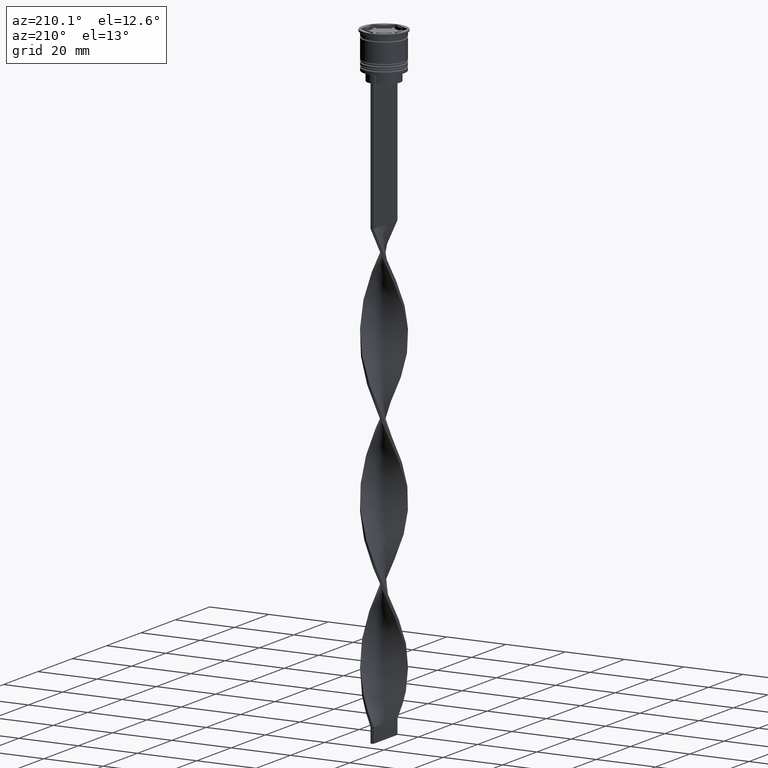
[diagram: clean part render]
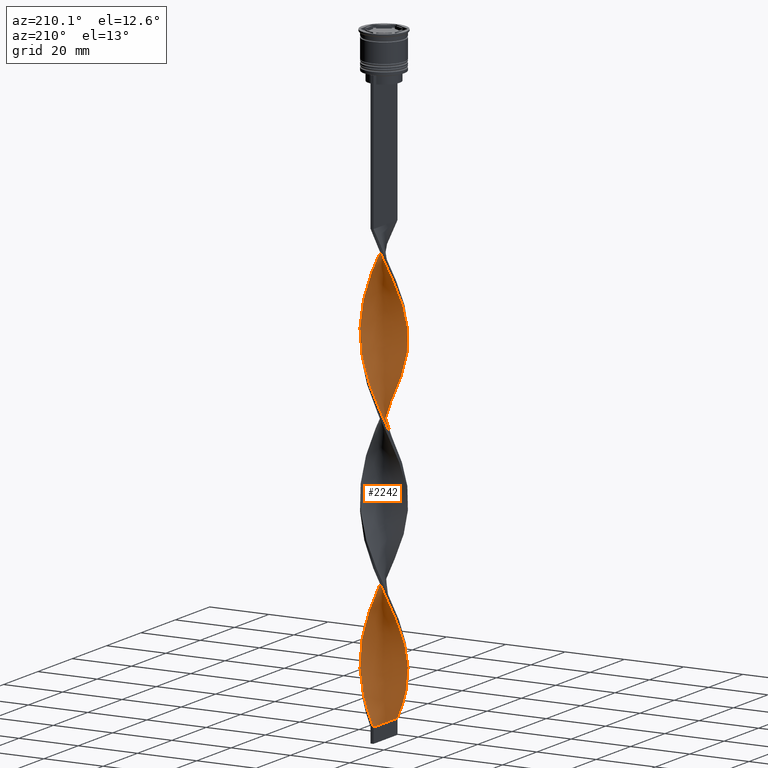
[diagram: same view with one face highlighted and labeled with its STEP entity id]
A machine part, auxiliary view. The second image highlights one B-rep face of the part: STEP entity #2242.
In plain terms, the highlighted face is a freeform B-spline surface patch.
Its self-contained STEP definition (entity closure, byte-faithful):
#3 = CARTESIAN_POINT ( 'NONE',  ( -0.4999999999999991673, 6.999999999999997335, -207.5000000000000000 ) ) ;
#4 = CARTESIAN_POINT ( 'NONE',  ( 2.994927778012247632, -6.346684772736912450, -64.34313725490196134 ) ) ;
#15 = CARTESIAN_POINT ( 'NONE',  ( -5.085373964136229219, 4.836214598721332969, -119.8529411764705799 ) ) ;
#17 = CARTESIAN_POINT ( 'NONE',  ( 1.148645523694208581, 6.953668176878989193, -156.3725490196078454 ) ) ;
#37 = CARTESIAN_POINT ( 'NONE',  ( -5.533515242862683259, 4.364985304700184088, -121.3137254901960631 ) ) ;
#39 = CARTESIAN_POINT ( 'NONE',  ( -6.736663859307489233, -2.071291312187311551, -188.5098039215686185 ) ) ;
#43 = CARTESIAN_POINT ( 'NONE',  ( 2.062455548607894595, -6.707926438924068258, -114.0098039215686185 ) ) ;
#46 = CARTESIAN_POINT ( 'NONE',  ( -6.869610997245777284, -1.434728108918171596, -87.71568627450979250 ) ) ;
#48 = CARTESIAN_POINT ( 'NONE',  ( -2.062455548607892375, -6.707926438924064705, -151.9901960784313530 ) ) ;
#59 = CARTESIAN_POINT ( 'NONE',  ( 2.684036471161912019, -6.516811787577958981, -115.4705882352940876 ) ) ;
#64 = CARTESIAN_POINT ( 'NONE',  ( -6.595948007173689120, -2.396553752090988088, -137.3823529411764639 ) ) ;
#76 = CARTESIAN_POINT ( 'NONE',  ( 4.346365046915569685, 5.509910242367890731, -195.8137254901960773 ) ) ;
#84 = CARTESIAN_POINT ( 'NONE',  ( 1.440874626053875396, -6.899041090270183751, -112.5490196078431495 ) ) ;
#89 = CARTESIAN_POINT ( 'NONE',  ( -6.373874598089923182, -3.007758344858550981, -138.8431372549019329 ) ) ;
#94 = CARTESIAN_POINT ( 'NONE',  ( -4.856933420439688120, 5.107160209221786928, -170.9803921568627629 ) ) ;
#97 = CARTESIAN_POINT ( 'NONE',  ( 3.835796673391455691, 5.912660275513999864, -197.2745098039215463 ) ) ;
#103 = VERTEX_POINT ( 'NONE', #3 ) ;
#105 = CARTESIAN_POINT ( 'NONE',  ( 0.1486455236942071378, 7.046331823121014359, -106.7058823529411882 ) ) ;
#111 = CARTESIAN_POINT ( 'NONE',  ( 6.595948007173694450, -2.396553752090992084, -128.6176470588235361 ) ) ;
#113 = CARTESIAN_POINT ( 'NONE',  ( -4.110133708006299180, -5.688303868668623586, -198.7352941176470722 ) ) ;
#115 = CARTESIAN_POINT ( 'NONE',  ( -7.016273413796890956, 0.1480114280955958372, -131.5392156862745310 ) ) ;
#116 = CARTESIAN_POINT ( 'NONE',  ( 7.029988692409719242, 0.5021420494578368032, -182.6666666666666572 ) ) ;
#122 = CARTESIAN_POINT ( 'NONE',  ( 7.002558135184063559, -0.7981649056490300875, -80.41176470588234793 ) ) ;
#130 = CARTESIAN_POINT ( 'NONE',  ( -3.583034730602821405, -6.069163844594760882, -200.1960784313725696 ) ) ;
#137 = CARTESIAN_POINT ( 'NONE',  ( -6.736663859307489233, -2.071291312187311551, -188.5098039215686185 ) ) ;
#146 = CARTESIAN_POINT ( 'NONE',  ( 5.712673125104408278, 4.127741927368044905, -191.4313725490196134 ) ) ;
#154 = CARTESIAN_POINT ( 'NONE',  ( -1.440874626053875174, 6.899041090270183751, -162.2156862745098351 ) ) ;
#156 = CARTESIAN_POINT ( 'NONE',  ( -5.887437909151307380, -3.819433841014676201, -192.8921568627450824 ) ) ;
#195 = CARTESIAN_POINT ( 'NONE',  ( -6.924005054333588483, -1.143745604390627779, -134.4607843137254974 ) ) ;
#202 = CARTESIAN_POINT ( 'NONE',  ( 5.284803272772047755, 4.617451068294911920, -93.55882352941176805 ) ) ;
#226 = CARTESIAN_POINT ( 'NONE',  ( -2.062455548607893263, 6.707926438924069146, -163.6764705882352757 ) ) ;
#229 = EDGE_CURVE ( 'NONE', #1521, #2752, #693, .T. ) ;
#230 = CARTESIAN_POINT ( 'NONE',  ( -2.062455548607893263, 6.707926438924069146, -64.34313725490196134 ) ) ;
#231 = CARTESIAN_POINT ( 'NONE',  ( 6.373874598089927623, -3.007758344858554977, -127.1568627450980102 ) ) ;
#242 = CARTESIAN_POINT ( 'NONE',  ( -1.777733174557944107, -6.788936938879031047, -204.5784313725490335 ) ) ;
#271 = CARTESIAN_POINT ( 'NONE',  ( -4.637232685409778732, -5.307443892742487179, -97.94117647058824616 ) ) ;
#275 = CARTESIAN_POINT ( 'NONE',  ( -1.148645523694207693, -6.953668176878989193, -106.7058823529412024 ) ) ;
#289 =( BOUNDED_CURVE ( )  B_SPLINE_CURVE ( 2, ( #3847, #2344, #553, #2903, #230, #1496, #894, #3539, #2691, #2009, #876, #2028, #1424, #3222, #3264, #1478, #1761, #3207, #2065, #2044, #3894, #1722, #1133, #1742, #2938, #2296, #2961, #271, #1458, #2670, #3871, #1194, #314, #614, #2226, #731, #939, #3716, #2123, #3607, #332, #955, #713, #1894, #1334, #1538, #3370, #746, #111, #2993, #465, #3733, #2734, #2534, #1931, #3080, #2835, #1023, #3692, #3114, #1067, #1642, #431, #1252, #1605, #2103, #3299, #17, #631, #2515, #2710, #154, #2816, #646, #1047, #2211, #2496, #3626, #1806, #2407, #1515, #1824, #3412, #1234, #1358, #2798, #3014, #353, #1317, #39, #2424, #2191, #3392, #1915, #3097, #449, #1625, #130, #806, #3508, #242, #520, #3451 ),
 .UNSPECIFIED., .F., .T. ) 
 B_SPLINE_CURVE_WITH_KNOTS ( ( 3, 2, 2, 2, 2, 2, 2, 2, 2, 2, 2, 2, 2, 2, 2, 2, 2, 2, 2, 2, 2, 2, 2, 2, 2, 2, 2, 2, 2, 2, 2, 2, 2, 2, 2, 2, 2, 2, 2, 2, 2, 2, 2, 2, 2, 2, 2, 2, 2, 2, 2, 3 ),
 ( 0.000000000000000000, 0.01470588235294117453, 0.02941176470588234906, 0.04411764705882353227, 0.05882352941176469813, 0.07352941176470588480, 0.08823529411764706454, 0.1029411764705882443, 0.1176470588235293963, 0.1323529411764705899, 0.1470588235294117696, 0.1617647058823529493, 0.1764705882352941291, 0.1911764705882352811, 0.2058823529411764885, 0.2205882352941176405, 0.2352941176470587925, 0.2500000000000000000, 0.2647058823529411797, 0.2794117647058823595, 0.2941176470588235392, 0.3088235294117647189, 0.3235294117647058987, 0.3382352941176470229, 0.3529411764705882582, 0.3676470588235294379, 0.3823529411764705621, 0.3970588235294117418, 0.4117647058823529771, 0.4264705882352941013, 0.4411764705882352811, 0.4558823529411764608, 0.4705882352941175850, 0.4852941176470588203, 0.5000000000000000000, 0.5147058823529411242, 0.5294117647058823595, 0.5441176470588234837, 0.5588235294117647189, 0.5735294117647058432, 0.5882352941176470784, 0.6029411764705882026, 0.6176470588235294379, 0.6323529411764705621, 0.6470588235294117974, 0.6617647058823529216, 0.6764705882352940458, 0.6911764705882351700, 0.7058823529411765163, 0.7205882352941176405, 0.7352941176470588758, 0.7500000000000000000 ),
 .UNSPECIFIED. ) 
 CURVE ( )  GEOMETRIC_REPRESENTATION_ITEM ( )  RATIONAL_B_SPLINE_CURVE ( ( 1.000000000000000000, 0.9957341762950344677, 1.000000000000000000, 0.9957341762950344677, 1.000000000000000000, 0.9957341762950344677, 1.000000000000000000, 0.9957341762950344677, 1.000000000000000000, 0.9957341762950344677, 1.000000000000000000, 0.9957341762950344677, 1.000000000000000000, 0.9957341762950344677, 1.000000000000000000, 0.9957341762950344677, 1.000000000000000000, 0.9957341762950344677, 1.000000000000000000, 0.9957341762950344677, 1.000000000000000000, 0.9957341762950344677, 1.000000000000000000, 0.9957341762950344677, 1.000000000000000000, 0.9957341762950344677, 1.000000000000000000, 0.9957341762950344677, 1.000000000000000000, 0.9957341762950344677, 1.000000000000000000, 0.9957341762950344677, 1.000000000000000000, 0.9957341762950344677, 1.000000000000000000, 0.9957341762950344677, 1.000000000000000000, 0.9957341762950344677, 1.000000000000000000, 0.9957341762950344677, 1.000000000000000000, 0.9957341762950344677, 1.000000000000000000, 0.9957341762950344677, 1.000000000000000000, 0.9957341762950344677, 1.000000000000000000, 0.9957341762950344677, 1.000000000000000000, 0.9957341762950344677, 1.000000000000000000, 0.9957341762950344677, 1.000000000000000000, 0.9957341762950344677, 1.000000000000000000, 0.9957341762950344677, 1.000000000000000000, 0.9957341762950344677, 1.000000000000000000, 0.9957341762950344677, 1.000000000000000000, 0.9957341762950344677, 1.000000000000000000, 0.9957341762950344677, 1.000000000000000000, 0.9957341762950344677, 1.000000000000000000, 0.9957341762950344677, 1.000000000000000000, 0.9957341762950344677, 1.000000000000000000, 0.9957341762950344677, 1.000000000000000000, 0.9957341762950344677, 1.000000000000000000, 0.9957341762950344677, 1.000000000000000000, 0.9957341762950344677, 1.000000000000000000, 0.9957341762950344677, 1.000000000000000000, 0.9957341762950344677, 1.000000000000000000, 0.9957341762950344677, 1.000000000000000000, 0.9957341762950344677, 1.000000000000000000, 0.9957341762950344677, 1.000000000000000000, 0.9957341762950344677, 1.000000000000000000, 0.9957341762950344677, 1.000000000000000000, 0.9957341762950344677, 1.000000000000000000, 0.9957341762950344677, 1.000000000000000000, 0.9957341762950344677, 1.000000000000000000, 0.9957341762950344677, 1.000000000000000000, 0.9957341762950344677, 1.000000000000000000 ) ) 
 REPRESENTATION_ITEM ( '' )  );
#298 = CARTESIAN_POINT ( 'NONE',  ( -5.712673125104412719, 4.127741927368047570, -173.9019607843137294 ) ) ;
#314 = CARTESIAN_POINT ( 'NONE',  ( -1.777733174557944107, -6.788936938879031047, -105.2450980392156765 ) ) ;
#323 = CARTESIAN_POINT ( 'NONE',  ( 1.777733174557942775, -6.788936938879025718, -61.42156862745097357 ) ) ;
#327 = CARTESIAN_POINT ( 'NONE',  ( 2.062455548607891487, 6.707926438924064705, -102.3235294117646959 ) ) ;
#332 = CARTESIAN_POINT ( 'NONE',  ( 3.259916572276685187, -6.214736031545978534, -116.9313725490195992 ) ) ;
#353 = CARTESIAN_POINT ( 'NONE',  ( -7.002558135184068888, -0.7981649056490316418, -185.5882352941176237 ) ) ;
#362 = CARTESIAN_POINT ( 'NONE',  ( -7.002558135184068000, -0.7981649056490316418, -86.25490196078432348 ) ) ;
#364 = CARTESIAN_POINT ( 'NONE',  ( -5.085373964136229219, 4.836214598721332969, -119.8529411764705799 ) ) ;
#372 = CARTESIAN_POINT ( 'NONE',  ( -2.406820825421680965, -6.624205700879071124, -203.1176470588235361 ) ) ;
#383 = CARTESIAN_POINT ( 'NONE',  ( -3.583034730602817408, 6.069163844594756441, -115.4705882352941018 ) ) ;
#392 = CARTESIAN_POINT ( 'NONE',  ( 5.887437909151302939, -3.819433841014673536, -172.4411764705882035 ) ) ;
#399 = CARTESIAN_POINT ( 'NONE',  ( -3.583034730602816964, 6.069163844594756441, -115.4705882352940876 ) ) ;
#400 = CARTESIAN_POINT ( 'NONE',  ( -5.533515242862685035, -4.364985304700188529, -95.01960784313725128 ) ) ;
#401 = CARTESIAN_POINT ( 'NONE',  ( 3.835796673391455247, 5.912660275513998975, -97.94117647058824616 ) ) ;
#413 = CARTESIAN_POINT ( 'NONE',  ( 4.637232685409776067, -5.307443892742482738, -168.0588235294117680 ) ) ;
#424 = CARTESIAN_POINT ( 'NONE',  ( 0.5000000000000000000, -6.999999999999997335, -157.8333333333333144 ) ) ;
#431 = CARTESIAN_POINT ( 'NONE',  ( 4.110133708006300957, 5.688303868668621810, -149.0686274509803866 ) ) ;
#443 = CARTESIAN_POINT ( 'NONE',  ( 4.346365046915569685, 5.509910242367890731, -96.48039215686274872 ) ) ;
#449 = CARTESIAN_POINT ( 'NONE',  ( -4.637232685409778732, -5.307443892742487179, -197.2745098039215463 ) ) ;
#452 = CARTESIAN_POINT ( 'NONE',  ( 5.085373964136229219, -4.836214598721332969, -169.5196078431372371 ) ) ;
#460 = CARTESIAN_POINT ( 'NONE',  ( 6.241360575439923508, -3.273882377329162985, -173.9019607843137294 ) ) ;
#465 = CARTESIAN_POINT ( 'NONE',  ( 6.924005054333593812, -1.143745604390631110, -131.5392156862745310 ) ) ;
#467 = CARTESIAN_POINT ( 'NONE',  ( 1.777733174557942775, -6.788936938879025718, -160.7549019607842808 ) ) ;
#503 = CARTESIAN_POINT ( 'NONE',  ( -5.712673125104412719, 4.127741927368047570, -74.56862745098038658 ) ) ;
#514 = CARTESIAN_POINT ( 'NONE',  ( 2.994927778012247632, -6.346684772736912450, -163.6764705882352757 ) ) ;
#520 = CARTESIAN_POINT ( 'NONE',  ( -1.148645523694207693, -6.953668176878989193, -206.0392156862745026 ) ) ;
#536 = CARTESIAN_POINT ( 'NONE',  ( 6.924005054333588483, 1.143745604390630222, -184.1274509803921546 ) ) ;
#553 = CARTESIAN_POINT ( 'NONE',  ( -0.7947600748740419885, 6.972686456695599944, -61.42156862745097357 ) ) ;
#590 = CARTESIAN_POINT ( 'NONE',  ( -0.5000000000000008882, -7.000000000000002665, -108.1666666666666572 ) ) ;
#605 = CARTESIAN_POINT ( 'NONE',  ( 5.712673125104408278, 4.127741927368045793, -92.09803921568628482 ) ) ;
#614 = CARTESIAN_POINT ( 'NONE',  ( -1.148645523694207693, -6.953668176878989193, -106.7058823529411882 ) ) ;
#622 = CARTESIAN_POINT ( 'NONE',  ( -6.595948007173694450, 2.396553752090989864, -78.95098039215686470 ) ) ;
#631 = CARTESIAN_POINT ( 'NONE',  ( 0.5000000000000000000, 7.000000000000002665, -157.8333333333333144 ) ) ;
#646 = CARTESIAN_POINT ( 'NONE',  ( -2.684036471161912907, 6.516811787577958981, -165.1372549019608016 ) ) ;
#648 = CARTESIAN_POINT ( 'NONE',  ( -6.373874598089927623, 3.007758344858555866, -176.8235294117647243 ) ) ;
#656 = CARTESIAN_POINT ( 'NONE',  ( 1.440874626053875174, 6.899041090270179311, -103.7843137254901791 ) ) ;
#676 = CARTESIAN_POINT ( 'NONE',  ( 3.259916572276681634, 6.214736031545974981, -99.40196078431372939 ) ) ;
#685 = CARTESIAN_POINT ( 'NONE',  ( 0.7947600748740411003, 6.972686456695594615, -204.5784313725490335 ) ) ;
#693 = LINE ( 'NONE', #1868, #2378 ) ;
#694 = CARTESIAN_POINT ( 'NONE',  ( 2.062455548607891487, 6.707926438924064705, -102.3235294117646959 ) ) ;
#703 = CARTESIAN_POINT ( 'NONE',  ( 5.533515242862682371, -4.364985304700184976, -170.9803921568627629 ) ) ;
#708 = CARTESIAN_POINT ( 'NONE',  ( -4.856933420439682791, -5.107160209221785152, -144.6862745098039227 ) ) ;
#713 = CARTESIAN_POINT ( 'NONE',  ( 4.346365046915572350, -5.509910242367894284, -119.8529411764705799 ) ) ;
#717 = CARTESIAN_POINT ( 'NONE',  ( -0.4999999999999991673, 6.999999999999997335, -207.5000000000000000 ) ) ;
#727 = CARTESIAN_POINT ( 'NONE',  ( 5.533515242862682371, -4.364985304700184976, -71.64705882352942012 ) ) ;
#731 = CARTESIAN_POINT ( 'NONE',  ( 0.1486455236942091918, -7.046331823121017912, -109.6274509803921404 ) ) ;
#734 = CARTESIAN_POINT ( 'NONE',  ( -3.259916572276685187, -6.214736031545972317, -149.0686274509803866 ) ) ;
#740 = ORIENTED_EDGE ( 'NONE', *, *, #2982, .T. ) ;
#746 = CARTESIAN_POINT ( 'NONE',  ( 6.373874598089927623, -3.007758344858554977, -127.1568627450980244 ) ) ;
#751 = CARTESIAN_POINT ( 'NONE',  ( 3.259916572276685187, -6.214736031545978534, -116.9313725490195992 ) ) ;
#757 = CARTESIAN_POINT ( 'NONE',  ( -0.4999999999999991673, 6.999999999999997335, -207.5000000000000000 ) ) ;
#766 = CARTESIAN_POINT ( 'NONE',  ( -5.533515242862685035, -4.364985304700188529, -194.3529411764705799 ) ) ;
#767 = FACE_OUTER_BOUND ( 'NONE', #2468, .T. ) ;
#772 = CARTESIAN_POINT ( 'NONE',  ( -2.994927778012249409, -6.346684772736916891, -201.6568627450980387 ) ) ;
#780 = CARTESIAN_POINT ( 'NONE',  ( 4.856933420439684568, 5.107160209221783376, -194.3529411764705799 ) ) ;
#793 = CARTESIAN_POINT ( 'NONE',  ( -6.489012217373707259, -2.672586844758237490, -189.9705882352941160 ) ) ;
#800 = CARTESIAN_POINT ( 'NONE',  ( 6.736663859307483904, -2.071291312187310663, -176.8235294117647243 ) ) ;
#806 = CARTESIAN_POINT ( 'NONE',  ( -2.994927778012249409, -6.346684772736916891, -201.6568627450980387 ) ) ;
#827 = CARTESIAN_POINT ( 'NONE',  ( -0.7947600748740419885, 6.972686456695599944, -61.42156862745097357 ) ) ;
#847 = CARTESIAN_POINT ( 'NONE',  ( -7.029988692409723683, 0.5021420494578376914, -83.33333333333332860 ) ) ;
#869 = CARTESIAN_POINT ( 'NONE',  ( -6.869610997245777284, -1.434728108918171596, -187.0490196078431211 ) ) ;
#876 = CARTESIAN_POINT ( 'NONE',  ( -5.284803272772050420, 4.617451068294916361, -73.10784313725488914 ) ) ;
#877 = CARTESIAN_POINT ( 'NONE',  ( 6.736663859307490121, 2.071291312187309774, -138.8431372549019045 ) ) ;
#879 = CARTESIAN_POINT ( 'NONE',  ( 7.029988692409719242, 0.5021420494578368032, -83.33333333333332860 ) ) ;
#883 = CARTESIAN_POINT ( 'NONE',  ( -7.016273413796896286, -0.1480114280955961703, -84.79411764705882604 ) ) ;
#894 = CARTESIAN_POINT ( 'NONE',  ( -3.259916572276684299, 6.214736031545979422, -67.26470588235292780 ) ) ;
#896 = CARTESIAN_POINT ( 'NONE',  ( -6.818021416257463940, 1.785349159323425861, -179.7450980392157192 ) ) ;
#920 = CARTESIAN_POINT ( 'NONE',  ( 6.869610997245771955, -1.434728108918169154, -78.95098039215686470 ) ) ;
#929 = CARTESIAN_POINT ( 'NONE',  ( 3.583034730602818296, -6.069163844594756441, -65.80392156862745878 ) ) ;
#935 = CARTESIAN_POINT ( 'NONE',  ( -1.148645523694207693, -6.953668176878989193, -206.0392156862745026 ) ) ;
#939 = CARTESIAN_POINT ( 'NONE',  ( 0.7947600748740405452, -6.972686456695599944, -111.0882352941176379 ) ) ;
#955 = CARTESIAN_POINT ( 'NONE',  ( 3.835796673391457023, -5.912660275514004304, -118.3921568627451109 ) ) ;
#965 = CARTESIAN_POINT ( 'NONE',  ( 6.869610997245771955, -1.434728108918169154, -78.95098039215686470 ) ) ;
#977 = CARTESIAN_POINT ( 'NONE',  ( 2.994927778012250297, 6.346684772736916891, -151.9901960784313530 ) ) ;
#985 = CARTESIAN_POINT ( 'NONE',  ( -6.818021416257458611, -1.785349159323426305, -135.9215686274509665 ) ) ;
#993 = CARTESIAN_POINT ( 'NONE',  ( 5.284803272772047755, 4.617451068294911920, -192.8921568627450824 ) ) ;
#999 = CARTESIAN_POINT ( 'NONE',  ( -2.994927778012248520, 6.346684772736911562, -114.0098039215686185 ) ) ;
#1003 = CARTESIAN_POINT ( 'NONE',  ( -4.346365046915572350, 5.509910242367894284, -169.5196078431372371 ) ) ;
#1007 = CARTESIAN_POINT ( 'NONE',  ( -3.835796673391456579, -5.912660275513998975, -147.6078431372548891 ) ) ;
#1012 = CARTESIAN_POINT ( 'NONE',  ( 5.712673125104411831, -4.127741927368048458, -124.2352941176470580 ) ) ;
#1016 = CARTESIAN_POINT ( 'NONE',  ( 6.489012217373702818, -2.672586844758235713, -76.02941176470586981 ) ) ;
#1023 = CARTESIAN_POINT ( 'NONE',  ( 6.241360575439927949, 3.273882377329165205, -141.7647058823529562 ) ) ;
#1029 = CARTESIAN_POINT ( 'NONE',  ( -2.062455548607892375, -6.707926438924064705, -151.9901960784313530 ) ) ;
#1031 = B_SPLINE_CURVE_WITH_KNOTS ( 'NONE', 3,
 ( #1996, #2909, #2370, #2595 ),
 .UNSPECIFIED., .F., .F.,
 ( 4, 4 ),
 ( 0.000000000000000000, 1.000000000000000000 ),
 .UNSPECIFIED. ) ;
#1040 = CARTESIAN_POINT ( 'NONE',  ( 6.924005054333588483, 1.143745604390630222, -84.79411764705882604 ) ) ;
#1047 = CARTESIAN_POINT ( 'NONE',  ( -3.259916572276684299, 6.214736031545979422, -166.5980392156862706 ) ) ;
#1056 = CARTESIAN_POINT ( 'NONE',  ( 5.284803272772050420, -4.617451068294917249, -122.7745098039215605 ) ) ;
#1061 = CARTESIAN_POINT ( 'NONE',  ( 2.062455548607891487, 6.707926438924064705, -201.6568627450980387 ) ) ;
#1067 = CARTESIAN_POINT ( 'NONE',  ( 5.085373964136231884, 4.836214598721338298, -146.1470588235294201 ) ) ;
#1085 = CARTESIAN_POINT ( 'NONE',  ( 0.5000000000000000000, 7.000000000000002665, -58.50000000000000000 ) ) ;
#1097 = CARTESIAN_POINT ( 'NONE',  ( 6.869610997245771955, -1.434728108918169154, -178.2843137254901933 ) ) ;
#1129 = CARTESIAN_POINT ( 'NONE',  ( -3.259916572276684299, 6.214736031545979422, -166.5980392156862706 ) ) ;
#1133 = CARTESIAN_POINT ( 'NONE',  ( -6.489012217373707259, -2.672586844758237490, -90.63725490196078738 ) ) ;
#1144 = CARTESIAN_POINT ( 'NONE',  ( -3.835796673391458800, 5.912660275514003416, -68.72549019607842524 ) ) ;
#1154 = CARTESIAN_POINT ( 'NONE',  ( 2.994927778012247632, -6.346684772736912450, -64.34313725490196134 ) ) ;
#1162 = CARTESIAN_POINT ( 'NONE',  ( -6.241360575439921732, 3.273882377329163873, -124.2352941176470580 ) ) ;
#1175 = CARTESIAN_POINT ( 'NONE',  ( 7.002558135184068000, 0.7981649056490325300, -135.9215686274509665 ) ) ;
#1194 = CARTESIAN_POINT ( 'NONE',  ( -2.406820825421680521, -6.624205700879072012, -103.7843137254901791 ) ) ;
#1211 = CARTESIAN_POINT ( 'NONE',  ( 5.533515242862684147, 4.364985304700190305, -144.6862745098039227 ) ) ;
#1230 = CARTESIAN_POINT ( 'NONE',  ( -1.777733174557944107, -6.788936938879031047, -204.5784313725490335 ) ) ;
#1234 = CARTESIAN_POINT ( 'NONE',  ( -6.818021416257463940, 1.785349159323425861, -179.7450980392157476 ) ) ;
#1252 = CARTESIAN_POINT ( 'NONE',  ( 3.583034730602819629, 6.069163844594762658, -150.5294117647058840 ) ) ;
#1257 = CARTESIAN_POINT ( 'NONE',  ( -6.736663859307489233, -2.071291312187311551, -89.17647058823527573 ) ) ;
#1259 = CARTESIAN_POINT ( 'NONE',  ( -1.440874626053876062, -6.899041090270178422, -153.4509803921568789 ) ) ;
#1264 = CARTESIAN_POINT ( 'NONE',  ( 0.5000000000000000000, -6.999999999999997335, -58.50000000000000000 ) ) ;
#1277 = CARTESIAN_POINT ( 'NONE',  ( 7.016273413796890068, -0.1480114280955966977, -81.87254901960783116 ) ) ;
#1286 = CARTESIAN_POINT ( 'NONE',  ( -0.7947600748740389909, -6.972686456695594615, -154.9117647058823479 ) ) ;
#1296 = CARTESIAN_POINT ( 'NONE',  ( -6.489012217373707259, -2.672586844758237490, -90.63725490196078738 ) ) ;
#1297 = CARTESIAN_POINT ( 'NONE',  ( -5.284803272772048643, -4.617451068294911032, -143.2254901960784537 ) ) ;
#1305 = CARTESIAN_POINT ( 'NONE',  ( 6.595948007173689120, 2.396553752090988976, -187.0490196078431211 ) ) ;
#1311 = CARTESIAN_POINT ( 'NONE',  ( 5.284803272772047755, 4.617451068294911920, -93.55882352941176805 ) ) ;
#1317 = CARTESIAN_POINT ( 'NONE',  ( -6.869610997245777284, -1.434728108918171596, -187.0490196078431211 ) ) ;
#1320 = CARTESIAN_POINT ( 'NONE',  ( 2.062455548607891487, 6.707926438924064705, -201.6568627450980387 ) ) ;
#1327 = CARTESIAN_POINT ( 'NONE',  ( 6.373874598089922294, 3.007758344858553201, -89.17647058823528994 ) ) ;
#1330 = CARTESIAN_POINT ( 'NONE',  ( -6.595948007173689120, -2.396553752090988088, -137.3823529411764639 ) ) ;
#1334 = CARTESIAN_POINT ( 'NONE',  ( 5.284803272772050420, -4.617451068294917249, -122.7745098039215605 ) ) ;
#1341 = CARTESIAN_POINT ( 'NONE',  ( 2.994927778012247632, -6.346684772736912450, -163.6764705882352757 ) ) ;
#1352 = CARTESIAN_POINT ( 'NONE',  ( 3.259916572276681634, 6.214736031545974981, -198.7352941176470722 ) ) ;
#1358 = CARTESIAN_POINT ( 'NONE',  ( -6.924005054333592923, 1.143745604390631554, -181.2058823529411598 ) ) ;
#1374 = EDGE_CURVE ( 'NONE', #3354, #103, #1031, .T. ) ;
#1391 = CARTESIAN_POINT ( 'NONE',  ( -6.043273861597169727, 3.567750136113300385, -76.02941176470586981 ) ) ;
#1401 = CARTESIAN_POINT ( 'NONE',  ( 6.595948007173694450, -2.396553752090992084, -128.6176470588235361 ) ) ;
#1404 = CARTESIAN_POINT ( 'NONE',  ( 7.016273413796890068, -0.1480114280955966977, -181.2058823529411598 ) ) ;
#1419 = CARTESIAN_POINT ( 'NONE',  ( 4.856933420439689009, -5.107160209221786040, -121.3137254901960631 ) ) ;
#1424 = CARTESIAN_POINT ( 'NONE',  ( -6.043273861597169727, 3.567750136113300385, -76.02941176470586981 ) ) ;
#1425 = CARTESIAN_POINT ( 'NONE',  ( 6.924005054333593812, -1.143745604390631110, -131.5392156862745310 ) ) ;
#1458 = CARTESIAN_POINT ( 'NONE',  ( -4.110133708006299180, -5.688303868668623586, -99.40196078431372939 ) ) ;
#1464 = CARTESIAN_POINT ( 'NONE',  ( -6.373874598089923182, -3.007758344858550981, -138.8431372549019045 ) ) ;
#1478 = CARTESIAN_POINT ( 'NONE',  ( -6.818021416257463940, 1.785349159323425861, -80.41176470588234793 ) ) ;
#1479 = CARTESIAN_POINT ( 'NONE',  ( 5.887437909151308268, 3.819433841014675313, -143.2254901960784537 ) ) ;
#1485 = CARTESIAN_POINT ( 'NONE',  ( 0.5000000000000000000, -6.999999999999997335, -58.50000000000000000 ) ) ;
#1496 = CARTESIAN_POINT ( 'NONE',  ( -2.684036471161912907, 6.516811787577958981, -65.80392156862745878 ) ) ;
#1501 = CARTESIAN_POINT ( 'NONE',  ( -7.029988692409719242, -0.5021420494578359150, -133.0000000000000000 ) ) ;
#1508 = CARTESIAN_POINT ( 'NONE',  ( 2.406820825421677412, -6.624205700879067571, -62.88235294117647101 ) ) ;
#1515 = CARTESIAN_POINT ( 'NONE',  ( -6.043273861597169727, 3.567750136113300385, -175.3627450980391984 ) ) ;
#1521 = VERTEX_POINT ( 'NONE', #1485 ) ;
#1538 = CARTESIAN_POINT ( 'NONE',  ( 5.712673125104411831, -4.127741927368048458, -124.2352941176470580 ) ) ;
#1541 = CARTESIAN_POINT ( 'NONE',  ( -2.994927778012248520, 6.346684772736911562, -114.0098039215686185 ) ) ;
#1543 = ORIENTED_EDGE ( 'NONE', *, *, #1374, .F. ) ;
#1546 = CARTESIAN_POINT ( 'NONE',  ( -6.489012217373703706, 2.672586844758233937, -125.6960784313725412 ) ) ;
#1554 = CARTESIAN_POINT ( 'NONE',  ( -1.777733174557940998, 6.788936938879025718, -111.0882352941176379 ) ) ;
#1561 = CARTESIAN_POINT ( 'NONE',  ( -2.684036471161909354, -6.516811787577954540, -150.5294117647058840 ) ) ;
#1571 = CARTESIAN_POINT ( 'NONE',  ( 7.002558135184062671, -0.7981649056490300875, -179.7450980392157192 ) ) ;
#1580 = CARTESIAN_POINT ( 'NONE',  ( -4.110133708006297404, 5.688303868668618257, -116.9313725490195992 ) ) ;
#1591 = CARTESIAN_POINT ( 'NONE',  ( 6.924005054333588483, 1.143745604390630222, -184.1274509803921546 ) ) ;
#1600 = CARTESIAN_POINT ( 'NONE',  ( 1.148645523694208137, -6.953668176878982088, -159.2941176470588118 ) ) ;
#1604 = CARTESIAN_POINT ( 'NONE',  ( 0.5000000000000000000, 7.000000000000002665, -58.50000000000000000 ) ) ;
#1605 = CARTESIAN_POINT ( 'NONE',  ( 2.994927778012250297, 6.346684772736916891, -151.9901960784313530 ) ) ;
#1612 = CARTESIAN_POINT ( 'NONE',  ( -0.5000000000000008882, -7.000000000000002665, -207.5000000000000000 ) ) ;
#1615 = CARTESIAN_POINT ( 'NONE',  ( -4.637232685409775179, 5.307443892742484515, -118.3921568627451109 ) ) ;
#1617 = CARTESIAN_POINT ( 'NONE',  ( -6.924005054333588483, -1.143745604390627779, -134.4607843137254974 ) ) ;
#1625 = CARTESIAN_POINT ( 'NONE',  ( -4.110133708006299180, -5.688303868668623586, -198.7352941176470722 ) ) ;
#1635 = CARTESIAN_POINT ( 'NONE',  ( 6.818021416257458611, 1.785349159323425638, -185.5882352941176237 ) ) ;
#1642 = CARTESIAN_POINT ( 'NONE',  ( 4.637232685409779620, 5.307443892742486291, -147.6078431372548891 ) ) ;
#1646 = CARTESIAN_POINT ( 'NONE',  ( -5.887437909151302051, 3.819433841014674424, -122.7745098039215605 ) ) ;
#1647 = CARTESIAN_POINT ( 'NONE',  ( 0.5000000000000000000, -6.999999999999997335, -157.8333333333333144 ) ) ;
#1707 = CARTESIAN_POINT ( 'NONE',  ( 6.595948007173689120, 2.396553752090988976, -187.0490196078431211 ) ) ;
#1722 = CARTESIAN_POINT ( 'NONE',  ( -6.736663859307489233, -2.071291312187311551, -89.17647058823528994 ) ) ;
#1724 = CARTESIAN_POINT ( 'NONE',  ( 4.110133708006296516, -5.688303868668619145, -67.26470588235292780 ) ) ;
#1742 = CARTESIAN_POINT ( 'NONE',  ( -6.241360575439927949, -3.273882377329165649, -92.09803921568628482 ) ) ;
#1744 = CARTESIAN_POINT ( 'NONE',  ( 5.533515242862682371, -4.364985304700184976, -71.64705882352943433 ) ) ;
#1761 = CARTESIAN_POINT ( 'NONE',  ( -6.924005054333592923, 1.143745604390631554, -81.87254901960783116 ) ) ;
#1763 = CARTESIAN_POINT ( 'NONE',  ( 6.924005054333588483, 1.143745604390630222, -84.79411764705882604 ) ) ;
#1793 = CARTESIAN_POINT ( 'NONE',  ( -6.924005054333592923, 1.143745604390631554, -81.87254901960783116 ) ) ;
#1800 = CARTESIAN_POINT ( 'NONE',  ( 3.259916572276681634, 6.214736031545974981, -99.40196078431372939 ) ) ;
#1801 = CARTESIAN_POINT ( 'NONE',  ( -1.440874626053875396, 6.899041090270183751, -162.2156862745098351 ) ) ;
#1806 = CARTESIAN_POINT ( 'NONE',  ( -5.284803272772050420, 4.617451068294916361, -172.4411764705882035 ) ) ;
#1808 = CARTESIAN_POINT ( 'NONE',  ( 5.887437909151302939, -3.819433841014673536, -73.10784313725488914 ) ) ;
#1824 = CARTESIAN_POINT ( 'NONE',  ( -6.373874598089927623, 3.007758344858555866, -176.8235294117647243 ) ) ;
#1834 = CARTESIAN_POINT ( 'NONE',  ( -5.712673125104408278, -4.127741927368044017, -141.7647058823529562 ) ) ;
#1849 = CARTESIAN_POINT ( 'NONE',  ( -5.887437909151302051, 3.819433841014674424, -122.7745098039215605 ) ) ;
#1859 = CARTESIAN_POINT ( 'NONE',  ( 1.148645523694208137, -6.953668176878982088, -159.2941176470588118 ) ) ;
#1864 = CARTESIAN_POINT ( 'NONE',  ( 0.1486455236942091918, -7.046331823121017912, -109.6274509803921546 ) ) ;
#1868 = CARTESIAN_POINT ( 'NONE',  ( 0.5000000000000000000, -6.999999999999997335, -58.50000000000000000 ) ) ;
#1869 = CARTESIAN_POINT ( 'NONE',  ( 5.887437909151302939, -3.819433841014673536, -73.10784313725488914 ) ) ;
#1877 = CARTESIAN_POINT ( 'NONE',  ( -5.284803272772048643, -4.617451068294911032, -143.2254901960784537 ) ) ;
#1888 = CARTESIAN_POINT ( 'NONE',  ( -1.777733174557940998, 6.788936938879025718, -111.0882352941176379 ) ) ;
#1894 = CARTESIAN_POINT ( 'NONE',  ( 4.856933420439689009, -5.107160209221786040, -121.3137254901960773 ) ) ;
#1909 = CARTESIAN_POINT ( 'NONE',  ( -6.869610997245771955, 1.434728108918171596, -128.6176470588235361 ) ) ;
#1915 = CARTESIAN_POINT ( 'NONE',  ( -5.533515242862685923, -4.364985304700188529, -194.3529411764705799 ) ) ;
#1918 = CARTESIAN_POINT ( 'NONE',  ( -1.440874626053876062, -6.899041090270178422, -153.4509803921568789 ) ) ;
#1922 = CARTESIAN_POINT ( 'NONE',  ( 7.016273413796896286, 0.1480114280955937833, -134.4607843137254974 ) ) ;
#1931 = CARTESIAN_POINT ( 'NONE',  ( 6.869610997245777284, 1.434728108918170708, -137.3823529411764639 ) ) ;
#1933 = CARTESIAN_POINT ( 'NONE',  ( 6.818021416257458611, 1.785349159323425638, -185.5882352941176237 ) ) ;
#1942 = CARTESIAN_POINT ( 'NONE',  ( 2.406820825421677412, -6.624205700879067571, -162.2156862745098351 ) ) ;
#1960 = ORIENTED_EDGE ( 'NONE', *, *, #229, .F. ) ;
#1965 = CARTESIAN_POINT ( 'NONE',  ( -2.684036471161912907, 6.516811787577958981, -65.80392156862747299 ) ) ;
#1970 = CARTESIAN_POINT ( 'NONE',  ( -6.241360575439927061, -3.273882377329165649, -191.4313725490196134 ) ) ;
#1978 = CARTESIAN_POINT ( 'NONE',  ( 0.1486455236942071378, 7.046331823121014359, -206.0392156862745026 ) ) ;
#1984 = CARTESIAN_POINT ( 'NONE',  ( -4.637232685409779620, -5.307443892742487179, -197.2745098039215463 ) ) ;
#1996 = CARTESIAN_POINT ( 'NONE',  ( -0.5000000000000008882, -7.000000000000002665, -207.5000000000000000 ) ) ;
#2002 = CARTESIAN_POINT ( 'NONE',  ( -1.440874626053875396, 6.899041090270183751, -62.88235294117647811 ) ) ;
#2009 = CARTESIAN_POINT ( 'NONE',  ( -4.856933420439688120, 5.107160209221786928, -71.64705882352942012 ) ) ;
#2028 = CARTESIAN_POINT ( 'NONE',  ( -5.712673125104412719, 4.127741927368047570, -74.56862745098038658 ) ) ;
#2044 = CARTESIAN_POINT ( 'NONE',  ( -7.002558135184068888, -0.7981649056490316418, -86.25490196078432348 ) ) ;
#2045 = CARTESIAN_POINT ( 'NONE',  ( 6.241360575439927061, 3.273882377329165205, -141.7647058823529562 ) ) ;
#2065 = CARTESIAN_POINT ( 'NONE',  ( -7.016273413796896286, -0.1480114280955961703, -84.79411764705882604 ) ) ;
#2076 = CARTESIAN_POINT ( 'NONE',  ( 1.148645523694208137, -6.953668176878982088, -59.96078431372549034 ) ) ;
#2083 = CARTESIAN_POINT ( 'NONE',  ( 0.5000000000000000000, 7.000000000000002665, -157.8333333333333144 ) ) ;
#2103 = CARTESIAN_POINT ( 'NONE',  ( 2.406820825421680965, 6.624205700879071124, -153.4509803921568789 ) ) ;
#2107 = CARTESIAN_POINT ( 'NONE',  ( 0.7947600748740405452, -6.972686456695599944, -111.0882352941176379 ) ) ;
#2122 = CARTESIAN_POINT ( 'NONE',  ( -1.148645523694208581, 6.953668176878982088, -109.6274509803921546 ) ) ;
#2123 = CARTESIAN_POINT ( 'NONE',  ( 2.062455548607894595, -6.707926438924068258, -114.0098039215686185 ) ) ;
#2132 = CARTESIAN_POINT ( 'NONE',  ( -4.110133708006299180, -5.688303868668623586, -99.40196078431372939 ) ) ;
#2134 = CARTESIAN_POINT ( 'NONE',  ( 5.712673125104408278, 4.127741927368044905, -92.09803921568628482 ) ) ;
#2146 = CARTESIAN_POINT ( 'NONE',  ( 6.736663859307483904, -2.071291312187310663, -176.8235294117647243 ) ) ;
#2148 = CARTESIAN_POINT ( 'NONE',  ( 2.406820825421681409, 6.624205700879070235, -153.4509803921568789 ) ) ;
#2155 = CARTESIAN_POINT ( 'NONE',  ( 6.818021416257458611, 1.785349159323425638, -86.25490196078432348 ) ) ;
#2161 = CARTESIAN_POINT ( 'NONE',  ( -4.856933420439682791, -5.107160209221785152, -144.6862745098039227 ) ) ;
#2167 = CARTESIAN_POINT ( 'NONE',  ( -4.637232685409775179, 5.307443892742482738, -118.3921568627451109 ) ) ;
#2175 = CARTESIAN_POINT ( 'NONE',  ( 5.712673125104408278, 4.127741927368045793, -191.4313725490196134 ) ) ;
#2185 = CARTESIAN_POINT ( 'NONE',  ( -7.016273413796890956, 0.1480114280955958372, -131.5392156862745310 ) ) ;
#2191 = CARTESIAN_POINT ( 'NONE',  ( -6.241360575439927949, -3.273882377329165649, -191.4313725490196134 ) ) ;
#2196 = CARTESIAN_POINT ( 'NONE',  ( 4.110133708006296516, -5.688303868668619145, -166.5980392156862706 ) ) ;
#2206 = CARTESIAN_POINT ( 'NONE',  ( 5.533515242862682371, -4.364985304700184976, -170.9803921568627629 ) ) ;
#2211 = CARTESIAN_POINT ( 'NONE',  ( -3.835796673391458800, 5.912660275514003416, -168.0588235294117680 ) ) ;
#2221 = CARTESIAN_POINT ( 'NONE',  ( 1.440874626053875174, 6.899041090270179311, -203.1176470588235361 ) ) ;
#2226 = CARTESIAN_POINT ( 'NONE',  ( -0.5000000000000008882, -7.000000000000002665, -108.1666666666666572 ) ) ;
#2236 = CARTESIAN_POINT ( 'NONE',  ( 4.346365046915569685, 5.509910242367890731, -195.8137254901960773 ) ) ;
#2242 = ADVANCED_FACE ( 'NONE', ( #767 ), #2946, .T. ) ;
#2263 = CARTESIAN_POINT ( 'NONE',  ( 5.085373964136229219, -4.836214598721332969, -169.5196078431372371 ) ) ;
#2296 = CARTESIAN_POINT ( 'NONE',  ( -5.533515242862685923, -4.364985304700188529, -95.01960784313726549 ) ) ;
#2299 = CARTESIAN_POINT ( 'NONE',  ( -2.406820825421680965, -6.624205700879071124, -103.7843137254901933 ) ) ;
#2304 = CARTESIAN_POINT ( 'NONE',  ( -6.818021416257458611, -1.785349159323426305, -135.9215686274509665 ) ) ;
#2314 = CARTESIAN_POINT ( 'NONE',  ( 1.148645523694208581, 6.953668176878989193, -156.3725490196078454 ) ) ;
#2322 = CARTESIAN_POINT ( 'NONE',  ( 4.637232685409776067, -5.307443892742482738, -68.72549019607842524 ) ) ;
#2344 = CARTESIAN_POINT ( 'NONE',  ( -0.1486455236942086366, 7.046331823121017912, -59.96078431372549034 ) ) ;
#2346 = CARTESIAN_POINT ( 'NONE',  ( 5.085373964136229219, -4.836214598721332969, -70.18627450980390847 ) ) ;
#2353 = CARTESIAN_POINT ( 'NONE',  ( -6.818021416257463940, 1.785349159323425861, -80.41176470588234793 ) ) ;
#2356 = CARTESIAN_POINT ( 'NONE',  ( -7.016273413796896286, -0.1480114280955961703, -184.1274509803921546 ) ) ;
#2365 = CARTESIAN_POINT ( 'NONE',  ( -6.043273861597169727, 3.567750136113300385, -175.3627450980391984 ) ) ;
#2370 = CARTESIAN_POINT ( 'NONE',  ( -0.4999999999999996669, 2.333333333333331261, -207.5000000000000000 ) ) ;
#2378 = VECTOR ( 'NONE', #2792, 1000.000000000000000 ) ;
#2383 = CARTESIAN_POINT ( 'NONE',  ( -5.712673125104408278, -4.127741927368044905, -141.7647058823529562 ) ) ;
#2386 = CARTESIAN_POINT ( 'NONE',  ( 6.736663859307483904, -2.071291312187310663, -77.49019607843138147 ) ) ;
#2407 = CARTESIAN_POINT ( 'NONE',  ( -5.712673125104412719, 4.127741927368047570, -173.9019607843137294 ) ) ;
#2409 = CARTESIAN_POINT ( 'NONE',  ( -3.835796673391458800, 5.912660275514003416, -168.0588235294117680 ) ) ;
#2424 = CARTESIAN_POINT ( 'NONE',  ( -6.489012217373707259, -2.672586844758237490, -189.9705882352941160 ) ) ;
#2431 = CARTESIAN_POINT ( 'NONE',  ( -6.241360575439927061, -3.273882377329165649, -92.09803921568628482 ) ) ;
#2433 = CARTESIAN_POINT ( 'NONE',  ( -3.259916572276685187, -6.214736031545972317, -149.0686274509803866 ) ) ;
#2438 = CARTESIAN_POINT ( 'NONE',  ( 1.148645523694208137, -6.953668176878982088, -59.96078431372549744 ) ) ;
#2450 = CARTESIAN_POINT ( 'NONE',  ( 6.043273861597165286, 3.567750136113297277, -90.63725490196078738 ) ) ;
#2458 = CARTESIAN_POINT ( 'NONE',  ( 2.406820825421677412, -6.624205700879066683, -62.88235294117647811 ) ) ;
#2461 = CARTESIAN_POINT ( 'NONE',  ( -0.4999999999999991673, 6.999999999999997335, -108.1666666666666572 ) ) ;
#2462 = CARTESIAN_POINT ( 'NONE',  ( 3.583034730602817852, -6.069163844594756441, -165.1372549019608016 ) ) ;
#2468 = EDGE_LOOP ( 'NONE', ( #1960, #740, #1543, #2629 ) ) ;
#2473 = CARTESIAN_POINT ( 'NONE',  ( -0.7947600748740389909, -6.972686456695594615, -154.9117647058823479 ) ) ;
#2479 = CARTESIAN_POINT ( 'NONE',  ( 0.1486455236942071378, 7.046331823121014359, -106.7058823529412024 ) ) ;
#2480 = CARTESIAN_POINT ( 'NONE',  ( 1.440874626053875396, 6.899041090270179311, -203.1176470588235361 ) ) ;
#2489 = CARTESIAN_POINT ( 'NONE',  ( -6.241360575439922620, 3.273882377329164317, -124.2352941176470580 ) ) ;
#2496 = CARTESIAN_POINT ( 'NONE',  ( -4.346365046915572350, 5.509910242367894284, -169.5196078431372371 ) ) ;
#2507 = CARTESIAN_POINT ( 'NONE',  ( 0.7947600748740411003, 6.972686456695594615, -105.2450980392156765 ) ) ;
#2515 = CARTESIAN_POINT ( 'NONE',  ( -0.1486455236942086366, 7.046331823121017912, -159.2941176470588118 ) ) ;
#2529 = CARTESIAN_POINT ( 'NONE',  ( 2.684036471161911575, 6.516811787577952764, -200.1960784313725696 ) ) ;
#2534 = CARTESIAN_POINT ( 'NONE',  ( 7.002558135184068888, 0.7981649056490325300, -135.9215686274509665 ) ) ;
#2535 = CARTESIAN_POINT ( 'NONE',  ( -4.346365046915572350, 5.509910242367894284, -70.18627450980390847 ) ) ;
#2538 = CARTESIAN_POINT ( 'NONE',  ( 6.869610997245771955, -1.434728108918169154, -178.2843137254901933 ) ) ;
#2540 = CARTESIAN_POINT ( 'NONE',  ( -3.583034730602820961, -6.069163844594760882, -200.1960784313725981 ) ) ;
#2550 = CARTESIAN_POINT ( 'NONE',  ( 6.373874598089922294, 3.007758344858553201, -188.5098039215686185 ) ) ;
#2554 = CARTESIAN_POINT ( 'NONE',  ( -6.736663859307483904, 2.071291312187310663, -127.1568627450980102 ) ) ;
#2557 = CARTESIAN_POINT ( 'NONE',  ( -2.062455548607893263, 6.707926438924069146, -64.34313725490196134 ) ) ;
#2559 = CARTESIAN_POINT ( 'NONE',  ( -7.002558135184062671, 0.7981649056490275340, -130.0784313725490335 ) ) ;
#2566 = CARTESIAN_POINT ( 'NONE',  ( 4.856933420439684568, 5.107160209221783376, -95.01960784313725128 ) ) ;
#2568 = CARTESIAN_POINT ( 'NONE',  ( 7.029988692409719242, 0.5021420494578368032, -182.6666666666666856 ) ) ;
#2578 = CARTESIAN_POINT ( 'NONE',  ( -6.373874598089927623, 3.007758344858555866, -77.49019607843138147 ) ) ;
#2588 = CARTESIAN_POINT ( 'NONE',  ( 4.346365046915569685, 5.509910242367890731, -96.48039215686274872 ) ) ;
#2595 = CARTESIAN_POINT ( 'NONE',  ( -0.4999999999999991673, 6.999999999999997335, -207.5000000000000000 ) ) ;
#2604 = CARTESIAN_POINT ( 'NONE',  ( -2.684036471161912907, 6.516811787577958981, -165.1372549019608016 ) ) ;
#2609 = CARTESIAN_POINT ( 'NONE',  ( 6.595948007173689120, 2.396553752090988976, -87.71568627450979250 ) ) ;
#2614 = CARTESIAN_POINT ( 'NONE',  ( 5.887437909151302939, -3.819433841014673536, -172.4411764705882035 ) ) ;
#2629 = ORIENTED_EDGE ( 'NONE', *, *, #3517, .F. ) ;
#2667 = CARTESIAN_POINT ( 'NONE',  ( -0.1486455236942086366, 7.046331823121017912, -159.2941176470588118 ) ) ;
#2670 = CARTESIAN_POINT ( 'NONE',  ( -3.583034730602821405, -6.069163844594760882, -100.8627450980392126 ) ) ;
#2671 = CARTESIAN_POINT ( 'NONE',  ( 5.085373964136231884, 4.836214598721338298, -146.1470588235294201 ) ) ;
#2691 = CARTESIAN_POINT ( 'NONE',  ( -4.346365046915572350, 5.509910242367894284, -70.18627450980390847 ) ) ;
#2693 = CARTESIAN_POINT ( 'NONE',  ( 6.241360575439922620, -3.273882377329162985, -74.56862745098038658 ) ) ;
#2710 = CARTESIAN_POINT ( 'NONE',  ( -0.7947600748740419885, 6.972686456695599944, -160.7549019607842808 ) ) ;
#2711 = CARTESIAN_POINT ( 'NONE',  ( 6.489012217373707259, 2.672586844758239710, -140.3039215686274588 ) ) ;
#2734 = CARTESIAN_POINT ( 'NONE',  ( 7.016273413796896286, 0.1480114280955937833, -134.4607843137254974 ) ) ;
#2742 = CARTESIAN_POINT ( 'NONE',  ( -4.346365046915567909, -5.509910242367891620, -146.1470588235294201 ) ) ;
#2752 = VERTEX_POINT ( 'NONE', #1604 ) ;
#2756 = CARTESIAN_POINT ( 'NONE',  ( -2.406820825421677412, 6.624205700879067571, -112.5490196078431495 ) ) ;
#2761 = CARTESIAN_POINT ( 'NONE',  ( 2.684036471161911575, 6.516811787577952764, -200.1960784313725981 ) ) ;
#2773 = CARTESIAN_POINT ( 'NONE',  ( -5.533515242862683259, 4.364985304700184088, -121.3137254901960773 ) ) ;
#2783 = CARTESIAN_POINT ( 'NONE',  ( 6.373874598089922294, 3.007758344858553201, -188.5098039215686185 ) ) ;
#2792 = DIRECTION ( 'NONE',  ( 0.000000000000000000, 1.000000000000000000, 0.000000000000000000 ) ) ;
#2793 = CARTESIAN_POINT ( 'NONE',  ( 1.777733174557942775, -6.788936938879025718, -160.7549019607842808 ) ) ;
#2798 = CARTESIAN_POINT ( 'NONE',  ( -7.029988692409724571, 0.5021420494578376914, -182.6666666666666856 ) ) ;
#2802 = CARTESIAN_POINT ( 'NONE',  ( 3.259916572276681634, 6.214736031545974981, -198.7352941176470722 ) ) ;
#2805 = CARTESIAN_POINT ( 'NONE',  ( 6.043273861597170615, -3.567750136113298609, -125.6960784313725412 ) ) ;
#2806 = CARTESIAN_POINT ( 'NONE',  ( 3.835796673391457468, -5.912660275514004304, -118.3921568627451109 ) ) ;
#2810 = CARTESIAN_POINT ( 'NONE',  ( -6.043273861597164398, -3.567750136113299941, -140.3039215686274588 ) ) ;
#2816 = CARTESIAN_POINT ( 'NONE',  ( -2.062455548607893263, 6.707926438924069146, -163.6764705882352757 ) ) ;
#2826 = CARTESIAN_POINT ( 'NONE',  ( 6.043273861597165286, 3.567750136113297277, -189.9705882352941160 ) ) ;
#2835 = CARTESIAN_POINT ( 'NONE',  ( 6.489012217373707259, 2.672586844758239710, -140.3039215686274588 ) ) ;
#2838 = CARTESIAN_POINT ( 'NONE',  ( 7.016273413796890068, -0.1480114280955966977, -181.2058823529411598 ) ) ;
#2851 = CARTESIAN_POINT ( 'NONE',  ( -6.489012217373703706, 2.672586844758233937, -125.6960784313725412 ) ) ;
#2855 = CARTESIAN_POINT ( 'NONE',  ( -0.1486455236942086366, 7.046331823121017912, -59.96078431372549744 ) ) ;
#2863 = CARTESIAN_POINT ( 'NONE',  ( 3.835796673391455247, 5.912660275513998975, -197.2745098039215463 ) ) ;
#2870 = CARTESIAN_POINT ( 'NONE',  ( -4.856933420439688120, 5.107160209221786928, -71.64705882352943433 ) ) ;
#2903 = CARTESIAN_POINT ( 'NONE',  ( -1.440874626053875174, 6.899041090270183751, -62.88235294117647101 ) ) ;
#2907 = CARTESIAN_POINT ( 'NONE',  ( 6.489012217373702818, -2.672586844758235713, -175.3627450980391984 ) ) ;
#2909 = CARTESIAN_POINT ( 'NONE',  ( -0.5000000000000003331, -2.333333333333336590, -207.5000000000000000 ) ) ;
#2938 = CARTESIAN_POINT ( 'NONE',  ( -5.887437909151307380, -3.819433841014676201, -93.55882352941176805 ) ) ;
#2946 =( BOUNDED_SURFACE ( )  B_SPLINE_SURFACE ( 1, 2, ( 
 ( #1085, #2855, #827, #2002, #2557, #1965, #3751, #1144, #2535, #2870, #3161, #503, #1391, #2578, #622, #2353, #1793, #847, #883, #362, #46, #1257, #1296, #2431, #3346, #400, #3634, #3670, #2132, #3244, #3806, #2299, #3500, #275, #590, #1864, #2107, #84, #43, #59, #751, #2806, #3403, #1419, #1056, #1012, #2805, #231, #1401, #3481, #1425, #3803, #1922, #1175, #3223, #877, #2711, #2045, #1479, #1211, #2671, #2994, #3561, #3286, #977, #2148, #3260, #2314, #2083, #2667, #3555, #1801, #226, #2604, #1129, #2409, #1003, #94, #3243, #298, #2365, #648, #3563, #896, #3178, #3531, #2356, #3551, #869, #137, #793, #1970, #156, #766, #3473, #1984, #113, #2540, #772, #372, #1230, #935, #3296 ),
 ( #1264, #2438, #3337, #2458, #1154, #2980, #1724, #2322, #2346, #1744, #1808, #2693, #3541, #2386, #920, #3873, #2996, #879, #1763, #3170, #2609, #3259, #3760, #605, #202, #2566, #2588, #3804, #1800, #3580, #327, #3822, #3624, #2479, #2461, #2122, #1554, #3678, #1541, #399, #3686, #1615, #15, #37, #1646, #1162, #2851, #2554, #3448, #2559, #115, #1501, #195, #2304, #1330, #1464, #3307, #2383, #1877, #2161, #3061, #1007, #734, #3047, #1029, #1918, #1286, #3358, #1647, #1859, #467, #3373, #1341, #2462, #2196, #413, #452, #703, #392, #3340, #3397, #2146, #2538, #1571, #2838, #116, #1591, #1933, #1305, #2783, #3664, #2175, #993, #3116, #76, #97, #2802, #2761, #1320, #2480, #685, #3679, #717 ) ),
 .UNSPECIFIED., .F., .F., .F. ) 
 B_SPLINE_SURFACE_WITH_KNOTS ( ( 2, 2 ),
 ( 3, 2, 2, 2, 2, 2, 2, 2, 2, 2, 2, 2, 2, 2, 2, 2, 2, 2, 2, 2, 2, 2, 2, 2, 2, 2, 2, 2, 2, 2, 2, 2, 2, 2, 2, 2, 2, 2, 2, 2, 2, 2, 2, 2, 2, 2, 2, 2, 2, 2, 2, 3 ),
 ( 0.000000000000000000, 1.000000000000000000 ),
 ( 0.000000000000000000, 0.01470588235294117627, 0.02941176470588235253, 0.04411764705882353227, 0.05882352941176470507, 0.07352941176470588480, 0.08823529411764706454, 0.1029411764705882304, 0.1176470588235294101, 0.1323529411764705899, 0.1470588235294117696, 0.1617647058823529493, 0.1764705882352941291, 0.1911764705882352811, 0.2058823529411764608, 0.2205882352941176405, 0.2352941176470588203, 0.2500000000000000000, 0.2647058823529411797, 0.2794117647058823595, 0.2941176470588235392, 0.3088235294117647189, 0.3235294117647058987, 0.3382352941176470784, 0.3529411764705882582, 0.3676470588235294379, 0.3823529411764705621, 0.3970588235294117418, 0.4117647058823529216, 0.4264705882352941013, 0.4411764705882352811, 0.4558823529411764608, 0.4705882352941176405, 0.4852941176470588203, 0.5000000000000000000, 0.5147058823529411242, 0.5294117647058823595, 0.5441176470588234837, 0.5588235294117647189, 0.5735294117647058432, 0.5882352941176470784, 0.6029411764705882026, 0.6176470588235294379, 0.6323529411764705621, 0.6470588235294117974, 0.6617647058823529216, 0.6764705882352941568, 0.6911764705882352811, 0.7058823529411765163, 0.7205882352941176405, 0.7352941176470588758, 0.7500000000000000000 ),
 .UNSPECIFIED. ) 
 GEOMETRIC_REPRESENTATION_ITEM ( )  RATIONAL_B_SPLINE_SURFACE ( (
 ( 1.000000000000000000, 0.9957341762950344677, 1.000000000000000000, 0.9957341762950344677, 1.000000000000000000, 0.9957341762950344677, 1.000000000000000000, 0.9957341762950344677, 1.000000000000000000, 0.9957341762950344677, 1.000000000000000000, 0.9957341762950344677, 1.000000000000000000, 0.9957341762950344677, 1.000000000000000000, 0.9957341762950344677, 1.000000000000000000, 0.9957341762950344677, 1.000000000000000000, 0.9957341762950344677, 1.000000000000000000, 0.9957341762950344677, 1.000000000000000000, 0.9957341762950344677, 1.000000000000000000, 0.9957341762950344677, 1.000000000000000000, 0.9957341762950344677, 1.000000000000000000, 0.9957341762950344677, 1.000000000000000000, 0.9957341762950344677, 1.000000000000000000, 0.9957341762950344677, 1.000000000000000000, 0.9957341762950344677, 1.000000000000000000, 0.9957341762950344677, 1.000000000000000000, 0.9957341762950344677, 1.000000000000000000, 0.9957341762950344677, 1.000000000000000000, 0.9957341762950344677, 1.000000000000000000, 0.9957341762950344677, 1.000000000000000000, 0.9957341762950344677, 1.000000000000000000, 0.9957341762950344677, 1.000000000000000000, 0.9957341762950344677, 1.000000000000000000, 0.9957341762950344677, 1.000000000000000000, 0.9957341762950344677, 1.000000000000000000, 0.9957341762950344677, 1.000000000000000000, 0.9957341762950344677, 1.000000000000000000, 0.9957341762950344677, 1.000000000000000000, 0.9957341762950344677, 1.000000000000000000, 0.9957341762950344677, 1.000000000000000000, 0.9957341762950344677, 1.000000000000000000, 0.9957341762950344677, 1.000000000000000000, 0.9957341762950344677, 1.000000000000000000, 0.9957341762950344677, 1.000000000000000000, 0.9957341762950344677, 1.000000000000000000, 0.9957341762950344677, 1.000000000000000000, 0.9957341762950344677, 1.000000000000000000, 0.9957341762950344677, 1.000000000000000000, 0.9957341762950344677, 1.000000000000000000, 0.9957341762950344677, 1.000000000000000000, 0.9957341762950344677, 1.000000000000000000, 0.9957341762950344677, 1.000000000000000000, 0.9957341762950344677, 1.000000000000000000, 0.9957341762950344677, 1.000000000000000000, 0.9957341762950344677, 1.000000000000000000, 0.9957341762950344677, 1.000000000000000000, 0.9957341762950344677, 1.000000000000000000, 0.9957341762950344677, 1.000000000000000000),
 ( 1.000000000000000000, 0.9957341762950344677, 1.000000000000000000, 0.9957341762950344677, 1.000000000000000000, 0.9957341762950344677, 1.000000000000000000, 0.9957341762950344677, 1.000000000000000000, 0.9957341762950344677, 1.000000000000000000, 0.9957341762950344677, 1.000000000000000000, 0.9957341762950344677, 1.000000000000000000, 0.9957341762950344677, 1.000000000000000000, 0.9957341762950344677, 1.000000000000000000, 0.9957341762950344677, 1.000000000000000000, 0.9957341762950344677, 1.000000000000000000, 0.9957341762950344677, 1.000000000000000000, 0.9957341762950344677, 1.000000000000000000, 0.9957341762950344677, 1.000000000000000000, 0.9957341762950344677, 1.000000000000000000, 0.9957341762950344677, 1.000000000000000000, 0.9957341762950344677, 1.000000000000000000, 0.9957341762950344677, 1.000000000000000000, 0.9957341762950344677, 1.000000000000000000, 0.9957341762950344677, 1.000000000000000000, 0.9957341762950344677, 1.000000000000000000, 0.9957341762950344677, 1.000000000000000000, 0.9957341762950344677, 1.000000000000000000, 0.9957341762950344677, 1.000000000000000000, 0.9957341762950344677, 1.000000000000000000, 0.9957341762950344677, 1.000000000000000000, 0.9957341762950344677, 1.000000000000000000, 0.9957341762950344677, 1.000000000000000000, 0.9957341762950344677, 1.000000000000000000, 0.9957341762950344677, 1.000000000000000000, 0.9957341762950344677, 1.000000000000000000, 0.9957341762950344677, 1.000000000000000000, 0.9957341762950344677, 1.000000000000000000, 0.9957341762950344677, 1.000000000000000000, 0.9957341762950344677, 1.000000000000000000, 0.9957341762950344677, 1.000000000000000000, 0.9957341762950344677, 1.000000000000000000, 0.9957341762950344677, 1.000000000000000000, 0.9957341762950344677, 1.000000000000000000, 0.9957341762950344677, 1.000000000000000000, 0.9957341762950344677, 1.000000000000000000, 0.9957341762950344677, 1.000000000000000000, 0.9957341762950344677, 1.000000000000000000, 0.9957341762950344677, 1.000000000000000000, 0.9957341762950344677, 1.000000000000000000, 0.9957341762950344677, 1.000000000000000000, 0.9957341762950344677, 1.000000000000000000, 0.9957341762950344677, 1.000000000000000000, 0.9957341762950344677, 1.000000000000000000, 0.9957341762950344677, 1.000000000000000000, 0.9957341762950344677, 1.000000000000000000) ) ) 
 REPRESENTATION_ITEM ( '' )  SURFACE ( )  );
#2961 = CARTESIAN_POINT ( 'NONE',  ( -5.085373964136233660, -4.836214598721335634, -96.48039215686274872 ) ) ;
#2980 = CARTESIAN_POINT ( 'NONE',  ( 3.583034730602817852, -6.069163844594756441, -65.80392156862747299 ) ) ;
#2982 = EDGE_CURVE ( 'NONE', #1521, #103, #3339, .T. ) ;
#2993 = CARTESIAN_POINT ( 'NONE',  ( 6.818021416257465717, -1.785349159323423862, -130.0784313725490335 ) ) ;
#2994 = CARTESIAN_POINT ( 'NONE',  ( 4.637232685409780508, 5.307443892742486291, -147.6078431372548891 ) ) ;
#2996 = CARTESIAN_POINT ( 'NONE',  ( 7.016273413796890068, -0.1480114280955966977, -81.87254901960783116 ) ) ;
#3014 = CARTESIAN_POINT ( 'NONE',  ( -7.016273413796896286, -0.1480114280955961703, -184.1274509803921546 ) ) ;
#3022 = CARTESIAN_POINT ( 'NONE',  ( 7.029988692409719242, 0.5021420494578368032, -83.33333333333332860 ) ) ;
#3038 = CARTESIAN_POINT ( 'NONE',  ( -6.736663859307483904, 2.071291312187310663, -127.1568627450980244 ) ) ;
#3047 = CARTESIAN_POINT ( 'NONE',  ( -2.684036471161909354, -6.516811787577954540, -150.5294117647058840 ) ) ;
#3054 = CARTESIAN_POINT ( 'NONE',  ( -1.148645523694208581, 6.953668176878982088, -109.6274509803921404 ) ) ;
#3061 = CARTESIAN_POINT ( 'NONE',  ( -4.346365046915567909, -5.509910242367891620, -146.1470588235294201 ) ) ;
#3075 = CARTESIAN_POINT ( 'NONE',  ( -3.835796673391456135, -5.912660275513998087, -147.6078431372548891 ) ) ;
#3080 = CARTESIAN_POINT ( 'NONE',  ( 6.736663859307490121, 2.071291312187309774, -138.8431372549019329 ) ) ;
#3091 = CARTESIAN_POINT ( 'NONE',  ( -7.029988692409719242, -0.5021420494578359150, -133.0000000000000000 ) ) ;
#3097 = CARTESIAN_POINT ( 'NONE',  ( -5.085373964136233660, -4.836214598721335634, -195.8137254901960773 ) ) ;
#3108 = CARTESIAN_POINT ( 'NONE',  ( 4.110133708006296516, -5.688303868668619145, -166.5980392156862706 ) ) ;
#3114 = CARTESIAN_POINT ( 'NONE',  ( 5.533515242862685035, 4.364985304700190305, -144.6862745098039227 ) ) ;
#3116 = CARTESIAN_POINT ( 'NONE',  ( 4.856933420439684568, 5.107160209221783376, -194.3529411764705799 ) ) ;
#3161 = CARTESIAN_POINT ( 'NONE',  ( -5.284803272772050420, 4.617451068294916361, -73.10784313725488914 ) ) ;
#3170 = CARTESIAN_POINT ( 'NONE',  ( 6.818021416257458611, 1.785349159323425638, -86.25490196078432348 ) ) ;
#3178 = CARTESIAN_POINT ( 'NONE',  ( -6.924005054333592923, 1.143745604390631554, -181.2058823529411598 ) ) ;
#3207 = CARTESIAN_POINT ( 'NONE',  ( -7.029988692409724571, 0.5021420494578376914, -83.33333333333332860 ) ) ;
#3222 = CARTESIAN_POINT ( 'NONE',  ( -6.373874598089927623, 3.007758344858555866, -77.49019607843136725 ) ) ;
#3223 = CARTESIAN_POINT ( 'NONE',  ( 6.869610997245777284, 1.434728108918170708, -137.3823529411764639 ) ) ;
#3243 = CARTESIAN_POINT ( 'NONE',  ( -5.284803272772050420, 4.617451068294916361, -172.4411764705882035 ) ) ;
#3244 = CARTESIAN_POINT ( 'NONE',  ( -3.583034730602820961, -6.069163844594760882, -100.8627450980392126 ) ) ;
#3259 = CARTESIAN_POINT ( 'NONE',  ( 6.373874598089922294, 3.007758344858553201, -89.17647058823527573 ) ) ;
#3260 = CARTESIAN_POINT ( 'NONE',  ( 1.777733174557941886, 6.788936938879031047, -154.9117647058823479 ) ) ;
#3264 = CARTESIAN_POINT ( 'NONE',  ( -6.595948007173694450, 2.396553752090989864, -78.95098039215686470 ) ) ;
#3286 = CARTESIAN_POINT ( 'NONE',  ( 3.583034730602819184, 6.069163844594762658, -150.5294117647058840 ) ) ;
#3292 = CARTESIAN_POINT ( 'NONE',  ( 4.110133708006296516, -5.688303868668619145, -67.26470588235292780 ) ) ;
#3296 = CARTESIAN_POINT ( 'NONE',  ( -0.5000000000000008882, -7.000000000000002665, -207.5000000000000000 ) ) ;
#3299 = CARTESIAN_POINT ( 'NONE',  ( 1.777733174557941886, 6.788936938879031047, -154.9117647058823479 ) ) ;
#3307 = CARTESIAN_POINT ( 'NONE',  ( -6.043273861597164398, -3.567750136113299941, -140.3039215686274588 ) ) ;
#3309 = CARTESIAN_POINT ( 'NONE',  ( 2.684036471161911575, 6.516811787577952764, -100.8627450980392126 ) ) ;
#3330 = CARTESIAN_POINT ( 'NONE',  ( 5.085373964136229219, -4.836214598721332969, -70.18627450980390847 ) ) ;
#3337 = CARTESIAN_POINT ( 'NONE',  ( 1.777733174557942775, -6.788936938879025718, -61.42156862745097357 ) ) ;
#3339 =( BOUNDED_CURVE ( )  B_SPLINE_CURVE ( 2, ( #3573, #2076, #323, #1508, #4, #929, #3292, #3386, #3330, #727, #1869, #3687, #1016, #3636, #965, #122, #1277, #3022, #1040, #2155, #3347, #1327, #2450, #2134, #1311, #3708, #443, #401, #676, #3309, #694, #656, #2507, #105, #3655, #3054, #1888, #2756, #999, #383, #1580, #2167, #364, #2773, #1849, #2489, #1546, #3038, #1909, #3365, #2185, #3091, #1617, #985, #64, #89, #2810, #1834, #1297, #708, #2742, #3075, #2433, #1561, #48, #1259, #2473, #3671, #424, #1600, #2793, #1942, #514, #3421, #3108, #3407, #2263, #2206, #2614, #460, #2907, #800, #1097, #3728, #1404, #2568, #536, #1635, #1707, #2550, #2826, #146, #3466, #780, #2236, #2863, #1352, #2529, #1061, #2221, #3444, #1978, #757 ),
 .UNSPECIFIED., .F., .T. ) 
 B_SPLINE_CURVE_WITH_KNOTS ( ( 3, 2, 2, 2, 2, 2, 2, 2, 2, 2, 2, 2, 2, 2, 2, 2, 2, 2, 2, 2, 2, 2, 2, 2, 2, 2, 2, 2, 2, 2, 2, 2, 2, 2, 2, 2, 2, 2, 2, 2, 2, 2, 2, 2, 2, 2, 2, 2, 2, 2, 2, 3 ),
 ( 0.000000000000000000, 0.01470588235294117453, 0.02941176470588234906, 0.04411764705882353227, 0.05882352941176469813, 0.07352941176470588480, 0.08823529411764706454, 0.1029411764705882443, 0.1176470588235293963, 0.1323529411764705899, 0.1470588235294117696, 0.1617647058823529493, 0.1764705882352941291, 0.1911764705882352811, 0.2058823529411764885, 0.2205882352941176405, 0.2352941176470587925, 0.2500000000000000000, 0.2647058823529411797, 0.2794117647058823595, 0.2941176470588235392, 0.3088235294117647189, 0.3235294117647058987, 0.3382352941176470229, 0.3529411764705882582, 0.3676470588235294379, 0.3823529411764705621, 0.3970588235294117418, 0.4117647058823529771, 0.4264705882352941013, 0.4411764705882352811, 0.4558823529411764608, 0.4705882352941175850, 0.4852941176470588203, 0.5000000000000000000, 0.5147058823529411242, 0.5294117647058823595, 0.5441176470588234837, 0.5588235294117647189, 0.5735294117647058432, 0.5882352941176470784, 0.6029411764705882026, 0.6176470588235294379, 0.6323529411764705621, 0.6470588235294117974, 0.6617647058823529216, 0.6764705882352940458, 0.6911764705882351700, 0.7058823529411765163, 0.7205882352941176405, 0.7352941176470588758, 0.7500000000000000000 ),
 .UNSPECIFIED. ) 
 CURVE ( )  GEOMETRIC_REPRESENTATION_ITEM ( )  RATIONAL_B_SPLINE_CURVE ( ( 1.000000000000000000, 0.9957341762950344677, 1.000000000000000000, 0.9957341762950344677, 1.000000000000000000, 0.9957341762950344677, 1.000000000000000000, 0.9957341762950344677, 1.000000000000000000, 0.9957341762950344677, 1.000000000000000000, 0.9957341762950344677, 1.000000000000000000, 0.9957341762950344677, 1.000000000000000000, 0.9957341762950344677, 1.000000000000000000, 0.9957341762950344677, 1.000000000000000000, 0.9957341762950344677, 1.000000000000000000, 0.9957341762950344677, 1.000000000000000000, 0.9957341762950344677, 1.000000000000000000, 0.9957341762950344677, 1.000000000000000000, 0.9957341762950344677, 1.000000000000000000, 0.9957341762950344677, 1.000000000000000000, 0.9957341762950344677, 1.000000000000000000, 0.9957341762950344677, 1.000000000000000000, 0.9957341762950344677, 1.000000000000000000, 0.9957341762950344677, 1.000000000000000000, 0.9957341762950344677, 1.000000000000000000, 0.9957341762950344677, 1.000000000000000000, 0.9957341762950344677, 1.000000000000000000, 0.9957341762950344677, 1.000000000000000000, 0.9957341762950344677, 1.000000000000000000, 0.9957341762950344677, 1.000000000000000000, 0.9957341762950344677, 1.000000000000000000, 0.9957341762950344677, 1.000000000000000000, 0.9957341762950344677, 1.000000000000000000, 0.9957341762950344677, 1.000000000000000000, 0.9957341762950344677, 1.000000000000000000, 0.9957341762950344677, 1.000000000000000000, 0.9957341762950344677, 1.000000000000000000, 0.9957341762950344677, 1.000000000000000000, 0.9957341762950344677, 1.000000000000000000, 0.9957341762950344677, 1.000000000000000000, 0.9957341762950344677, 1.000000000000000000, 0.9957341762950344677, 1.000000000000000000, 0.9957341762950344677, 1.000000000000000000, 0.9957341762950344677, 1.000000000000000000, 0.9957341762950344677, 1.000000000000000000, 0.9957341762950344677, 1.000000000000000000, 0.9957341762950344677, 1.000000000000000000, 0.9957341762950344677, 1.000000000000000000, 0.9957341762950344677, 1.000000000000000000, 0.9957341762950344677, 1.000000000000000000, 0.9957341762950344677, 1.000000000000000000, 0.9957341762950344677, 1.000000000000000000, 0.9957341762950344677, 1.000000000000000000, 0.9957341762950344677, 1.000000000000000000, 0.9957341762950344677, 1.000000000000000000, 0.9957341762950344677, 1.000000000000000000 ) ) 
 REPRESENTATION_ITEM ( '' )  );
#3340 = CARTESIAN_POINT ( 'NONE',  ( 6.241360575439922620, -3.273882377329162985, -173.9019607843137294 ) ) ;
#3346 = CARTESIAN_POINT ( 'NONE',  ( -5.887437909151307380, -3.819433841014676201, -93.55882352941176805 ) ) ;
#3347 = CARTESIAN_POINT ( 'NONE',  ( 6.595948007173689120, 2.396553752090988976, -87.71568627450979250 ) ) ;
#3354 = VERTEX_POINT ( 'NONE', #1612 ) ;
#3358 = CARTESIAN_POINT ( 'NONE',  ( -0.1486455236942079983, -7.046331823121014359, -156.3725490196078454 ) ) ;
#3365 = CARTESIAN_POINT ( 'NONE',  ( -7.002558135184063559, 0.7981649056490275340, -130.0784313725490335 ) ) ;
#3370 = CARTESIAN_POINT ( 'NONE',  ( 6.043273861597170615, -3.567750136113298609, -125.6960784313725412 ) ) ;
#3373 = CARTESIAN_POINT ( 'NONE',  ( 2.406820825421677412, -6.624205700879066683, -162.2156862745098351 ) ) ;
#3386 = CARTESIAN_POINT ( 'NONE',  ( 4.637232685409776067, -5.307443892742482738, -68.72549019607842524 ) ) ;
#3392 = CARTESIAN_POINT ( 'NONE',  ( -5.887437909151307380, -3.819433841014676201, -192.8921568627450824 ) ) ;
#3397 = CARTESIAN_POINT ( 'NONE',  ( 6.489012217373702818, -2.672586844758235713, -175.3627450980391984 ) ) ;
#3403 = CARTESIAN_POINT ( 'NONE',  ( 4.346365046915572350, -5.509910242367894284, -119.8529411764705799 ) ) ;
#3407 = CARTESIAN_POINT ( 'NONE',  ( 4.637232685409776067, -5.307443892742482738, -168.0588235294117680 ) ) ;
#3412 = CARTESIAN_POINT ( 'NONE',  ( -6.595948007173694450, 2.396553752090989864, -178.2843137254901933 ) ) ;
#3421 = CARTESIAN_POINT ( 'NONE',  ( 3.583034730602818296, -6.069163844594756441, -165.1372549019608016 ) ) ;
#3444 = CARTESIAN_POINT ( 'NONE',  ( 0.7947600748740411003, 6.972686456695594615, -204.5784313725490335 ) ) ;
#3448 = CARTESIAN_POINT ( 'NONE',  ( -6.869610997245771955, 1.434728108918171596, -128.6176470588235361 ) ) ;
#3451 = CARTESIAN_POINT ( 'NONE',  ( -0.5000000000000008882, -7.000000000000002665, -207.5000000000000000 ) ) ;
#3466 = CARTESIAN_POINT ( 'NONE',  ( 5.284803272772047755, 4.617451068294911920, -192.8921568627450824 ) ) ;
#3473 = CARTESIAN_POINT ( 'NONE',  ( -5.085373964136233660, -4.836214598721335634, -195.8137254901960773 ) ) ;
#3481 = CARTESIAN_POINT ( 'NONE',  ( 6.818021416257465717, -1.785349159323423862, -130.0784313725490335 ) ) ;
#3500 = CARTESIAN_POINT ( 'NONE',  ( -1.777733174557944107, -6.788936938879031047, -105.2450980392156765 ) ) ;
#3508 = CARTESIAN_POINT ( 'NONE',  ( -2.406820825421680521, -6.624205700879072012, -203.1176470588235361 ) ) ;
#3517 = EDGE_CURVE ( 'NONE', #2752, #3354, #289, .T. ) ;
#3531 = CARTESIAN_POINT ( 'NONE',  ( -7.029988692409723683, 0.5021420494578376914, -182.6666666666666572 ) ) ;
#3539 = CARTESIAN_POINT ( 'NONE',  ( -3.835796673391458800, 5.912660275514003416, -68.72549019607842524 ) ) ;
#3541 = CARTESIAN_POINT ( 'NONE',  ( 6.489012217373702818, -2.672586844758235713, -76.02941176470586981 ) ) ;
#3551 = CARTESIAN_POINT ( 'NONE',  ( -7.002558135184068000, -0.7981649056490316418, -185.5882352941176237 ) ) ;
#3555 = CARTESIAN_POINT ( 'NONE',  ( -0.7947600748740419885, 6.972686456695599944, -160.7549019607842808 ) ) ;
#3561 = CARTESIAN_POINT ( 'NONE',  ( 4.110133708006300957, 5.688303868668621810, -149.0686274509803866 ) ) ;
#3563 = CARTESIAN_POINT ( 'NONE',  ( -6.595948007173694450, 2.396553752090989864, -178.2843137254901933 ) ) ;
#3573 = CARTESIAN_POINT ( 'NONE',  ( 0.5000000000000000000, -6.999999999999997335, -58.50000000000000000 ) ) ;
#3580 = CARTESIAN_POINT ( 'NONE',  ( 2.684036471161911575, 6.516811787577952764, -100.8627450980392126 ) ) ;
#3607 = CARTESIAN_POINT ( 'NONE',  ( 2.684036471161912019, -6.516811787577958981, -115.4705882352941018 ) ) ;
#3624 = CARTESIAN_POINT ( 'NONE',  ( 0.7947600748740411003, 6.972686456695594615, -105.2450980392156765 ) ) ;
#3626 = CARTESIAN_POINT ( 'NONE',  ( -4.856933420439688120, 5.107160209221786928, -170.9803921568627629 ) ) ;
#3634 = CARTESIAN_POINT ( 'NONE',  ( -5.085373964136233660, -4.836214598721335634, -96.48039215686274872 ) ) ;
#3636 = CARTESIAN_POINT ( 'NONE',  ( 6.736663859307483904, -2.071291312187310663, -77.49019607843136725 ) ) ;
#3655 = CARTESIAN_POINT ( 'NONE',  ( -0.4999999999999991673, 6.999999999999997335, -108.1666666666666572 ) ) ;
#3664 = CARTESIAN_POINT ( 'NONE',  ( 6.043273861597165286, 3.567750136113297277, -189.9705882352941160 ) ) ;
#3670 = CARTESIAN_POINT ( 'NONE',  ( -4.637232685409779620, -5.307443892742487179, -97.94117647058824616 ) ) ;
#3671 = CARTESIAN_POINT ( 'NONE',  ( -0.1486455236942079983, -7.046331823121014359, -156.3725490196078454 ) ) ;
#3678 = CARTESIAN_POINT ( 'NONE',  ( -2.406820825421677412, 6.624205700879066683, -112.5490196078431495 ) ) ;
#3679 = CARTESIAN_POINT ( 'NONE',  ( 0.1486455236942071378, 7.046331823121014359, -206.0392156862745026 ) ) ;
#3686 = CARTESIAN_POINT ( 'NONE',  ( -4.110133708006297404, 5.688303868668618257, -116.9313725490195992 ) ) ;
#3687 = CARTESIAN_POINT ( 'NONE',  ( 6.241360575439923508, -3.273882377329162985, -74.56862745098038658 ) ) ;
#3692 = CARTESIAN_POINT ( 'NONE',  ( 5.887437909151308268, 3.819433841014675313, -143.2254901960784537 ) ) ;
#3708 = CARTESIAN_POINT ( 'NONE',  ( 4.856933420439684568, 5.107160209221783376, -95.01960784313726549 ) ) ;
#3716 = CARTESIAN_POINT ( 'NONE',  ( 1.440874626053875174, -6.899041090270183751, -112.5490196078431495 ) ) ;
#3728 = CARTESIAN_POINT ( 'NONE',  ( 7.002558135184063559, -0.7981649056490300875, -179.7450980392157476 ) ) ;
#3733 = CARTESIAN_POINT ( 'NONE',  ( 7.029988692409724571, -0.5021420494578385796, -133.0000000000000000 ) ) ;
#3751 = CARTESIAN_POINT ( 'NONE',  ( -3.259916572276684299, 6.214736031545979422, -67.26470588235292780 ) ) ;
#3760 = CARTESIAN_POINT ( 'NONE',  ( 6.043273861597165286, 3.567750136113297277, -90.63725490196078738 ) ) ;
#3803 = CARTESIAN_POINT ( 'NONE',  ( 7.029988692409723683, -0.5021420494578385796, -133.0000000000000000 ) ) ;
#3804 = CARTESIAN_POINT ( 'NONE',  ( 3.835796673391455691, 5.912660275513999864, -97.94117647058824616 ) ) ;
#3806 = CARTESIAN_POINT ( 'NONE',  ( -2.994927778012249409, -6.346684772736916891, -102.3235294117646959 ) ) ;
#3822 = CARTESIAN_POINT ( 'NONE',  ( 1.440874626053875396, 6.899041090270179311, -103.7843137254901933 ) ) ;
#3847 = CARTESIAN_POINT ( 'NONE',  ( 0.5000000000000000000, 7.000000000000002665, -58.50000000000000000 ) ) ;
#3871 = CARTESIAN_POINT ( 'NONE',  ( -2.994927778012249409, -6.346684772736916891, -102.3235294117646959 ) ) ;
#3873 = CARTESIAN_POINT ( 'NONE',  ( 7.002558135184062671, -0.7981649056490300875, -80.41176470588234793 ) ) ;
#3894 = CARTESIAN_POINT ( 'NONE',  ( -6.869610997245777284, -1.434728108918171596, -87.71568627450979250 ) ) ;